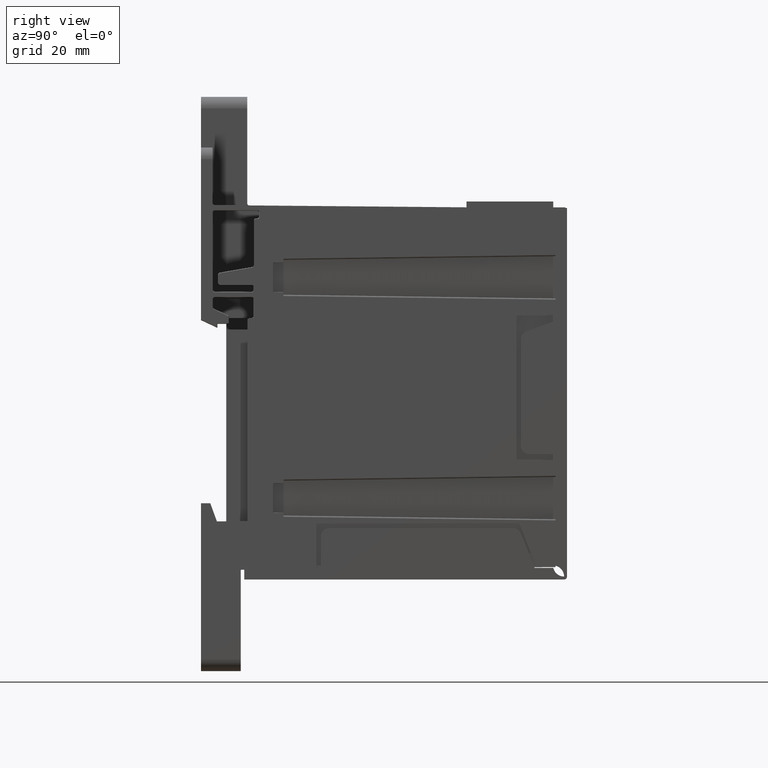
[diagram: clean part render]
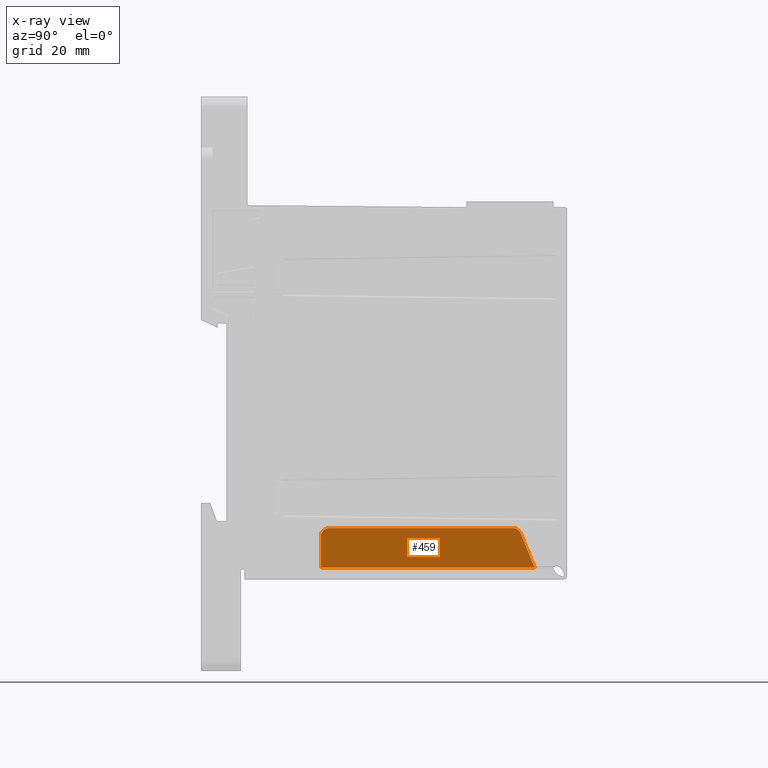
[diagram: x-ray — body ghosted, one internal face saturated and labeled with its STEP entity id]
A machine part, right view, then the same camera in x-ray: the body is ghosted and one INTERNAL B-rep face — a face not visible from any outside direction — is saturated and labeled: STEP entity #459.
In plain terms, the highlighted planar face has unit normal (-1, -0, -0).
Its self-contained STEP definition (entity closure, byte-faithful):
#459 = ADVANCED_FACE ( 'NONE', ( #13117 ), #11653, .F. ) ;
#2031 = EDGE_LOOP ( 'NONE', ( #30330, #30331, #30332, #30333, #30334, #30335 ) ) ;
#6095 = LINE ( 'NONE', #9204, #6100 ) ;
#6100 = VECTOR ( 'NONE', #9212, 39.37007874015748100 ) ;
#6160 = LINE ( 'NONE', #9293, #6166 ) ;
#6164 = CIRCLE ( 'NONE', #19510, 0.05999999999999990800 ) ;
#6166 = VECTOR ( 'NONE', #9294, 39.37007874015748900 ) ;
#6167 = LINE ( 'NONE', #9288, #6169 ) ;
#6168 = CIRCLE ( 'NONE', #19511, 0.05999999999999997700 ) ;
#6169 = VECTOR ( 'NONE', #9289, 39.37007874015748100 ) ;
#6170 = LINE ( 'NONE', #9295, #6173 ) ;
#6173 = VECTOR ( 'NONE', #9296, 39.37007874015748100 ) ;
#9204 = CARTESIAN_POINT ( 'NONE',  ( -0.8905000000000035100, 0.5080000000000058900, -1.245221204703000700 ) ) ;
#9212 = DIRECTION ( 'NONE',  ( -2.939934761340224000E-016, 1.000000000000000000, 4.999873613927937200E-033 ) ) ;
#9288 = CARTESIAN_POINT ( 'NONE',  ( -0.8905000000000035100, 0.5080000000000058900, -0.9702212047030005500 ) ) ;
#9289 = DIRECTION ( 'NONE',  ( -2.939934761340224000E-016, 1.000000000000000000, 4.999873613927937200E-033 ) ) ;
#9293 = CARTESIAN_POINT ( 'NONE',  ( -0.8905000000000039600, 1.875000000000005800, -0.9702212047030005500 ) ) ;
#9294 = DIRECTION ( 'NONE',  ( 9.404781859043084900E-017, -0.3746065934159092400, 0.9271838545667884200 ) ) ;
#9295 = CARTESIAN_POINT ( 'NONE',  ( -0.8905000000000035100, 0.5080000000000058900, -0.9702212047030005500 ) ) ;
#9296 = DIRECTION ( 'NONE',  ( 1.734723475976806200E-017, -6.733231641510056000E-033, -1.000000000000000000 ) ) ;
#9297 = CARTESIAN_POINT ( 'NONE',  ( -0.8905000000000039600, 1.834529488989460100, -1.030221204703000600 ) ) ;
#9298 = DIRECTION ( 'NONE',  ( 1.000000000000000000, 2.939934761340224900E-016, 1.734723475976806500E-017 ) ) ;
#9299 = DIRECTION ( 'NONE',  ( 0.0000000000000000000, -1.000000000000000000, 0.0000000000000000000 ) ) ;
#9302 = CARTESIAN_POINT ( 'NONE',  ( -0.8905000000000035100, 0.5680000000000058300, -1.030221204703000600 ) ) ;
#9303 = DIRECTION ( 'NONE',  ( 1.000000000000000000, 2.939934761340224900E-016, 1.734723475976806500E-017 ) ) ;
#9304 = DIRECTION ( 'NONE',  ( 0.0000000000000000000, -1.000000000000000000, 0.0000000000000000000 ) ) ;
#11653 = PLANE ( 'NONE',  #18852 ) ;
#11693 = CARTESIAN_POINT ( 'NONE',  ( -0.8905000000000035100, 0.5080000000000058900, -0.9702212047030005500 ) ) ;
#11694 = DIRECTION ( 'NONE',  ( -1.000000000000000000, -2.939934761340224000E-016, -1.734723475976806500E-017 ) ) ;
#11696 = DIRECTION ( 'NONE',  ( 2.939934761340224000E-016, -1.000000000000000000, -4.999873613927937200E-033 ) ) ;
#11891 = EDGE_CURVE ( 'NONE', #25276, #25297, #6095, .T. ) ;
#11927 = EDGE_CURVE ( 'NONE', #25297, #25177, #6160, .T. ) ;
#11928 = EDGE_CURVE ( 'NONE', #25177, #25254, #6164, .T. ) ;
#11929 = EDGE_CURVE ( 'NONE', #25205, #25254, #6167, .T. ) ;
#11930 = EDGE_CURVE ( 'NONE', #25205, #25317, #6168, .T. ) ;
#11931 = EDGE_CURVE ( 'NONE', #25317, #25276, #6170, .T. ) ;
#13117 = FACE_OUTER_BOUND ( 'NONE', #2031, .T. ) ;
#14046 = CARTESIAN_POINT ( 'NONE',  ( -0.8905000000000039600, 1.890160520263467500, -1.007744809098045900 ) ) ;
#14072 = CARTESIAN_POINT ( 'NONE',  ( -0.8905000000000035100, 0.5680000000000058300, -0.9702212047030005500 ) ) ;
#14121 = CARTESIAN_POINT ( 'NONE',  ( -0.8905000000000039600, 1.834529488989460100, -0.9702212047030005500 ) ) ;
#14143 = CARTESIAN_POINT ( 'NONE',  ( -0.8905000000000035100, 0.5080000000000058900, -1.245221204703000700 ) ) ;
#14164 = CARTESIAN_POINT ( 'NONE',  ( -0.8905000000000039600, 1.986107212104673200, -1.245221204703000700 ) ) ;
#14184 = CARTESIAN_POINT ( 'NONE',  ( -0.8905000000000035100, 0.5080000000000058900, -1.030221204703000600 ) ) ;
#18852 = AXIS2_PLACEMENT_3D ( 'NONE', #11693, #11694, #11696 ) ;
#19510 = AXIS2_PLACEMENT_3D ( 'NONE', #9297, #9298, #9299 ) ;
#19511 = AXIS2_PLACEMENT_3D ( 'NONE', #9302, #9303, #9304 ) ;
#25177 = VERTEX_POINT ( 'NONE', #14046 ) ;
#25205 = VERTEX_POINT ( 'NONE', #14072 ) ;
#25254 = VERTEX_POINT ( 'NONE', #14121 ) ;
#25276 = VERTEX_POINT ( 'NONE', #14143 ) ;
#25297 = VERTEX_POINT ( 'NONE', #14164 ) ;
#25317 = VERTEX_POINT ( 'NONE', #14184 ) ;
#30330 = ORIENTED_EDGE ( 'NONE', *, *, #11927, .T. ) ;
#30331 = ORIENTED_EDGE ( 'NONE', *, *, #11928, .T. ) ;
#30332 = ORIENTED_EDGE ( 'NONE', *, *, #11929, .F. ) ;
#30333 = ORIENTED_EDGE ( 'NONE', *, *, #11930, .T. ) ;
#30334 = ORIENTED_EDGE ( 'NONE', *, *, #11931, .T. ) ;
#30335 = ORIENTED_EDGE ( 'NONE', *, *, #11891, .T. ) ;